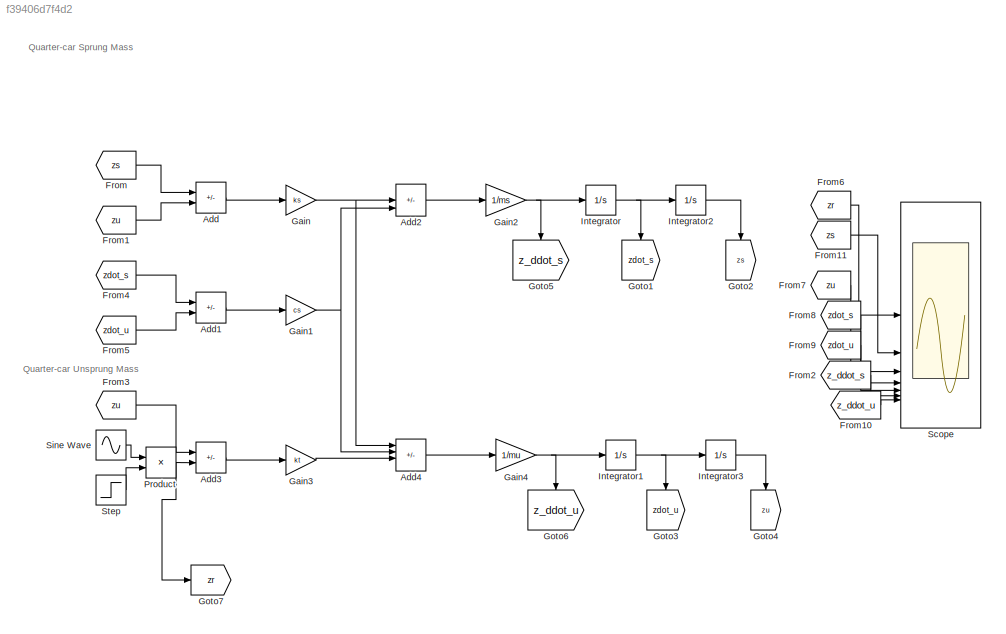
MODEL slx_f39406d7f4d2
KIND model
CONFIG AbsTol = auto
CONFIG EnableMultiTasking = off
CONFIG FixedStep = auto
CONFIG MaxStep = auto
CONFIG MinStep = auto
CONFIG RelTol = 1e-3
CONFIG SampleTimeConstraint = Unconstrained
CONFIG SolverName = VariableStepAuto
CONFIG StartTime = 0.0
CONFIG StopTime = 10.0
BLOCK [Sum] Add
  IconShape = rectangular
  Inputs = +-
BLOCK [Sum] Add1
  IconShape = rectangular
  Inputs = +-
BLOCK [Sum] Add2
  IconShape = rectangular
  Inputs = +--
BLOCK [Sum] Add3
  IconShape = rectangular
  Inputs = +-
BLOCK [Sum] Add4
  IconShape = rectangular
  Inputs = ++--
BLOCK [From] From
  GotoTag = zs
BLOCK [From] From1
  GotoTag = zu
BLOCK [From] From10
  GotoTag = z_ddot_u
BLOCK [From] From11
  GotoTag = zs
BLOCK [From] From2
  GotoTag = z_ddot_s
BLOCK [From] From3
  GotoTag = zu
BLOCK [From] From4
  GotoTag = zdot_s
BLOCK [From] From5
  GotoTag = zdot_u
BLOCK [From] From6
  GotoTag = zr
BLOCK [From] From7
  GotoTag = zu
BLOCK [From] From8
  GotoTag = zdot_s
BLOCK [From] From9
  GotoTag = zdot_u
BLOCK [Gain] Gain
  Gain = ks
BLOCK [Gain] Gain1
  Gain = cs
BLOCK [Gain] Gain2
  Gain = 1/ms
BLOCK [Gain] Gain3
  Gain = kt
BLOCK [Gain] Gain4
  Gain = 1/mu
BLOCK [Goto] Goto1
  GotoTag = zdot_s
  NameLocation = left
BLOCK [Goto] Goto2
  GotoTag = zs
  NameLocation = left
BLOCK [Goto] Goto3
  GotoTag = zdot_u
  NameLocation = left
BLOCK [Goto] Goto4
  GotoTag = zu
  NameLocation = left
BLOCK [Goto] Goto5
  GotoTag = z_ddot_s
  NameLocation = left
BLOCK [Goto] Goto6
  GotoTag = z_ddot_u
  NameLocation = left
BLOCK [Goto] Goto7
  GotoTag = zr
BLOCK [Integrator] Integrator
BLOCK [Integrator] Integrator1
BLOCK [Integrator] Integrator2
BLOCK [Integrator] Integrator3
BLOCK [Product] Product
BLOCK [Scope] Scope
  ActiveDisplayYMaximum = 0.16872918860107819
  ActiveDisplayYMinimum = -0.018747687622342017
  Floating = off
  GraphicalSettings = {"Style":{"BackgroundColor":[0.12941176470588237,0.12941176470588237,0.12941176470588237],"AxesColor":[0.07058823529411765,0.07058823529411765,0.07058823529411765],"LabelsColor":[0.8509803921568627,0.8509803921568627,0.8509803921568627],"PreserveColors":false,"Visible":[true,true,true,true,true,true,true],"LineStyle":["-","-","-","-","-","-","-"],"LineWidth":[1.5,1.5,1.5,1.5,1.5,1.5,1.5],"BarWidth...<+4551ch>
  LayoutDimensionsString = [3,3]
  MultipleDisplayCache = [{"MaxYLimMag":0.16872918860107819,"MaxYLimReal":0.16872918860107819,"MinYLimMag":0,"MinYLimReal":-0.018747687622342017,"PlotAsMagnitudePhase":false,"ShowGrid":true,"ShowLegend":false,"Title":"%<SignalLabel>","YLabel":""},{"MaxYLimMag":0.20106736505609588,"MaxYLimReal":0.20106736505609588,"MinYLimMag":0,"MinYLimReal":-0.050374503490717912,"PlotAsMagnitudePhase":false,"ShowGrid":true,"ShowLegend":f...<+1564ch>
  NumInputPorts = 7
  ScopeFrameLocation = window
  WasSavedAsWebScope = on
  WindowPosition = [439.000000,240.000000,560.000000,420.000000,]
BLOCK [Sin] Sine Wave
  Amplitude = 0.15
  Frequency = 2*pi
  SampleTime = 0
BLOCK [Step] Step
  After = 0
  Before = 1
  SampleTime = 0
  Time = 0.48
ANNOTATION (root): Quarter-car Sprung Mass
ANNOTATION (root): Quarter-car Unsprung Mass
LINE Add1:1 -> Gain1:1
LINE Add2:1 -> Gain2:1
LINE Add3:1 -> Gain3:1
LINE Add4:1 -> Gain4:1
LINE Add:1 -> Gain:1
LINE From10:1 -> Scope:7
LINE From11:1 -> Scope:2
LINE From1:1 -> Add:2
LINE From2:1 -> Scope:6
LINE From3:1 -> Add3:1
LINE From4:1 -> Add1:1
LINE From5:1 -> Add1:2
LINE From6:1 -> Scope:1
LINE From7:1 -> Scope:3
LINE From8:1 -> Scope:4
LINE From9:1 -> Scope:5
LINE From:1 -> Add:1
NET Gain1:1 -> Add2:3, Add4:2
NET Gain2:1 -> Goto5:1, Integrator:1
LINE Gain3:1 -> Add4:3
NET Gain4:1 -> Goto6:1, Integrator1:1
NET Gain:1 -> Add2:2, Add4:1
NET Integrator1:1 -> Goto3:1, Integrator3:1
LINE Integrator2:1 -> Goto2:1
LINE Integrator3:1 -> Goto4:1
NET Integrator:1 -> Goto1:1, Integrator2:1
NET Product:1 -> Add3:2, Goto7:1
LINE Sine Wave:1 -> Product:1
LINE Step:1 -> Product:2
note: NET lines group one-source signal fan-out (src -> all destinations, sorted); 1:1 wires keep LINE
